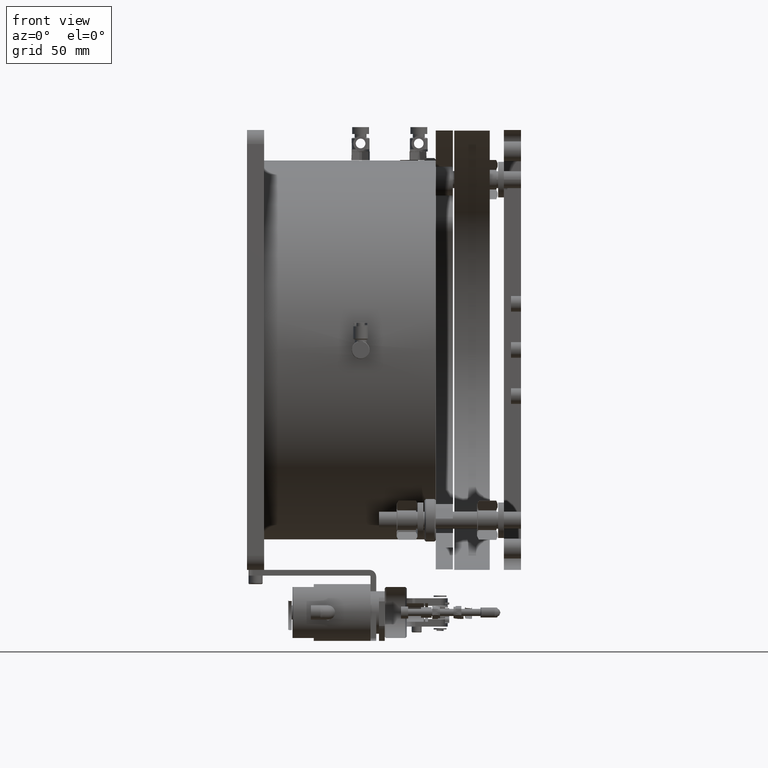
[diagram: clean part render]
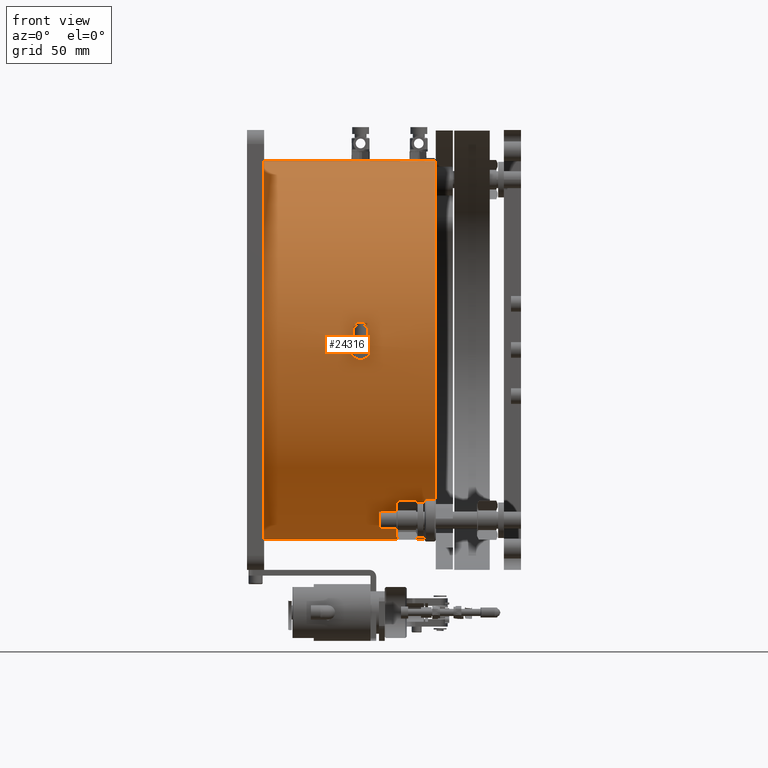
[diagram: same view with one face highlighted and labeled with its STEP entity id]
A machine part, front view. The second image highlights one B-rep face of the part: STEP entity #24316.
In plain terms, the highlighted cylindrical surface (bore or boss wall) has radius 133.5 mm, axis along (1, -0, -0).
Its self-contained STEP definition (entity closure, byte-faithful):
#208 = CARTESIAN_POINT ( 'NONE',  ( 464.4121963579659109, -167.7877219644888953, 608.7757094395534523 ) ) ;
#226 = CIRCLE ( 'NONE', #7754, 133.4999999999999432 ) ;
#498 = CARTESIAN_POINT ( 'NONE',  ( 463.4331972547801684, -167.7764876154168405, 609.1814316796575213 ) ) ;
#513 = CARTESIAN_POINT ( 'NONE',  ( 461.3466779185159794, -30.43573833762481584, 738.7266540197528002 ) ) ;
#550 = EDGE_CURVE ( 'NONE', #16642, #16642, #226, .T. ) ;
#616 = CARTESIAN_POINT ( 'NONE',  ( 499.3911129078833824, -34.33325410461313254, 738.7834046956846805 ) ) ;
#2237 = ORIENTED_EDGE ( 'NONE', *, *, #3704, .T. ) ;
#2556 = CARTESIAN_POINT ( 'NONE',  ( 465.8830467142116163, -167.8188429739955438, 607.3052762624895422 ) ) ;
#2617 = CARTESIAN_POINT ( 'NONE',  ( 464.8420550594223073, -167.7952947080903243, 602.0780744952822943 ) ) ;
#2715 = CARTESIAN_POINT ( 'NONE',  ( 507.3911129078834392, -34.86402820238219391, 738.7834046956846805 ) ) ;
#2757 = ORIENTED_EDGE ( 'NONE', *, *, #14846, .T. ) ;
#2764 = CARTESIAN_POINT ( 'NONE',  ( 459.1856000745275423, -167.8112865164292202, 602.8327741083015781 ) ) ;
#3027 = CARTESIAN_POINT ( 'NONE',  ( 505.4096170529750225, -30.83941807878073860, 738.7378320249197259 ) ) ;
#3156 = CARTESIAN_POINT ( 'NONE',  ( 458.8976870065486651, -32.31414042792429342, 738.7690327898141049 ) ) ;
#3405 = CARTESIAN_POINT ( 'NONE',  ( 458.3911131595660322, -167.8332540970720288, 605.2848236604243084 ) ) ;
#3433 = CARTESIAN_POINT ( 'NONE',  ( 461.8624854393904684, -38.33351276373830530, 738.7234583929429164 ) ) ;
#3467 = CARTESIAN_POINT ( 'NONE',  ( 507.3911129078833255, -33.80133686286269779, 738.7834046956844531 ) ) ;
#3581 = CARTESIAN_POINT ( 'NONE',  ( 460.3717203282150194, -37.82664882953020680, 738.7378439519917492 ) ) ;
#3704 = EDGE_CURVE ( 'NONE', #6434, #8356, #28369, .T. ) ;
#3763 = CARTESIAN_POINT ( 'NONE',  ( 394.3911129078834392, -34.33325410461312543, 605.2834046956847942 ) ) ;
#4773 = CARTESIAN_POINT ( 'NONE',  ( 464.8443547557029660, -167.7953385714103831, 608.4869307975635593 ) ) ;
#4788 = CARTESIAN_POINT ( 'NONE',  ( 504.4327231283908191, -38.23145786673237012, 738.7266330021597014 ) ) ;
#4817 = DIRECTION ( 'NONE',  ( -1.000000000000000000, 1.110223024625156294E-16, 4.190455460860056068E-35 ) ) ;
#4924 = CARTESIAN_POINT ( 'NONE',  ( 465.8809529585207088, -32.30747341135631956, 738.7689375397338836 ) ) ;
#4934 = FACE_OUTER_BOUND ( 'NONE', #11731, .T. ) ;
#4970 = CARTESIAN_POINT ( 'NONE',  ( 460.3666099245932628, -167.7877738825470715, 601.7930540368960237 ) ) ;
#5067 = CARTESIAN_POINT ( 'NONE',  ( 466.3911129078834392, -34.33325410461312543, 738.7834046956846805 ) ) ;
#5495 = CARTESIAN_POINT ( 'NONE',  ( 465.8831693351366994, -36.35483657791602496, 738.7689962779247708 ) ) ;
#5530 = CARTESIAN_POINT ( 'NONE',  ( 506.8809529585206519, -32.30747340990288308, 738.7689375397171716 ) ) ;
#5541 = VERTEX_POINT ( 'NONE', #23087 ) ;
#5683 = CARTESIAN_POINT ( 'NONE',  ( 501.3671280551116070, -30.84261721517503219, 738.7379170713453505 ) ) ;
#6068 = B_SPLINE_CURVE_WITH_KNOTS ( 'NONE', 3,
 ( #14187, #25253, #18468, #7122, #11545, #11399, #20540, #20979, #7563, #20402, #498, #208, #4773, #15975, #2556, #9186, #20832, #9773 ),
 .UNSPECIFIED., .F., .F.,
 ( 4, 2, 2, 2, 2, 2, 2, 2, 4 ),
 ( 0.000000000000000000, 0.1250000000000000000, 0.2500000000000000000, 0.3750000000000000000, 0.5000000000000000000, 0.6250000000000000000, 0.7500000000000000000, 0.8750000000000000000, 1.000000000000000000 ),
 .UNSPECIFIED. ) ;
#6434 = VERTEX_POINT ( 'NONE', #616 ) ;
#6773 = CARTESIAN_POINT ( 'NONE',  ( 466.3911129078834392, -167.8332541046130757, 605.2834046956843395 ) ) ;
#7122 = CARTESIAN_POINT ( 'NONE',  ( 458.8992088599141539, -167.8188414445039029, 607.3053742917567206 ) ) ;
#7180 = CARTESIAN_POINT ( 'NONE',  ( 462.9174301572528520, -167.7733016333672822, 601.2829402549421047 ) ) ;
#7424 = CARTESIAN_POINT ( 'NONE',  ( 459.9352125963669096, -31.13175555826339291, 738.7455384380085661 ) ) ;
#7435 = DIRECTION ( 'NONE',  ( 1.000000000000000000, -1.110223024625156294E-16, -4.190455460860056068E-35 ) ) ;
#7563 = CARTESIAN_POINT ( 'NONE',  ( 461.8634887714151773, -167.7733093049670856, 609.2836132115285181 ) ) ;
#7600 = CARTESIAN_POINT ( 'NONE',  ( 507.3911129078834392, -34.33325410461313254, 738.7834046956846805 ) ) ;
#7709 = CARTESIAN_POINT ( 'NONE',  ( 459.1879542003749179, -36.78714594190684295, 738.7613776265166052 ) ) ;
#7754 = AXIS2_PLACEMENT_3D ( 'NONE', #11885, #4817, #20883 ) ;
#7855 = CARTESIAN_POINT ( 'NONE',  ( 458.8984591734155742, -36.35377825252297157, 738.7690128476152722 ) ) ;
#8143 = CARTESIAN_POINT ( 'NONE',  ( 461.3523608902012256, -38.23227113917591424, 738.7266092063812266 ) ) ;
#8356 = VERTEX_POINT ( 'NONE', #28007 ) ;
#8867 = VERTEX_POINT ( 'NONE', #18140 ) ;
#9103 = CARTESIAN_POINT ( 'NONE',  ( 461.3455528505685379, -167.7765149226842141, 601.3862853594937405 ) ) ;
#9186 = CARTESIAN_POINT ( 'NONE',  ( 466.2894996691491656, -167.8300931927495867, 606.3247278514198797 ) ) ;
#9204 = CARTESIAN_POINT ( 'NONE',  ( 505.4116893539937223, -37.82578865600442697, 738.7378665013220598 ) ) ;
#9344 = CARTESIAN_POINT ( 'NONE',  ( 499.3911129078833824, -34.33325410461313254, 738.7834046956846805 ) ) ;
#9490 = CARTESIAN_POINT ( 'NONE',  ( 462.9183027316734069, -30.33274040306555008, 738.7234507477949137 ) ) ;
#9492 = CARTESIAN_POINT ( 'NONE',  ( 501.3717203289729127, -37.82664882977266529, 738.7378439519848143 ) ) ;
#9500 = CARTESIAN_POINT ( 'NONE',  ( 394.3911129078834392, -34.33325410461312543, 605.2834046956847942 ) ) ;
#9657 = CARTESIAN_POINT ( 'NONE',  ( 506.5924955647045635, -31.87723372755400675, 738.7613362467435536 ) ) ;
#9773 = CARTESIAN_POINT ( 'NONE',  ( 466.3911129078834392, -167.8332541046130757, 605.2834046956843395 ) ) ;
#9777 = EDGE_LOOP ( 'NONE', ( #17716 ) ) ;
#9807 = CARTESIAN_POINT ( 'NONE',  ( 499.8976870070181917, -32.31414042715293533, 738.7690327898054647 ) ) ;
#9940 = CARTESIAN_POINT ( 'NONE',  ( 463.4298110683229197, -30.43428862734192464, 738.7266103382233950 ) ) ;
#10063 = CARTESIAN_POINT ( 'NONE',  ( 462.9225812686427730, -38.33299494107117056, 738.7234739151972462 ) ) ;
#10205 = CARTESIAN_POINT ( 'NONE',  ( 458.4925821609899117, -35.37383955331746677, 738.7802484166018075 ) ) ;
#10347 = CARTESIAN_POINT ( 'NONE',  ( 466.2892406182347145, -35.37519548665999025, 738.7802372944900071 ) ) ;
#10365 = ORIENTED_EDGE ( 'NONE', *, *, #28144, .T. ) ;
#11312 = VERTEX_POINT ( 'NONE', #26655 ) ;
#11399 = CARTESIAN_POINT ( 'NONE',  ( 459.9394825390952519, -167.7953069577007170, 608.4882664246171089 ) ) ;
#11545 = CARTESIAN_POINT ( 'NONE',  ( 459.1887536981953986, -167.8112087403871442, 607.7382604373042341 ) ) ;
#11563 = CARTESIAN_POINT ( 'NONE',  ( 506.5938405556647126, -36.78749635588368250, 738.7613697403858168 ) ) ;
#11572 = DIRECTION ( 'NONE',  ( 0.000000000000000000, 1.000000000000000000, 0.000000000000000000 ) ) ;
#11608 = CARTESIAN_POINT ( 'NONE',  ( 463.4288548168410671, -167.7764490421229482, 601.3840639701229520 ) ) ;
#11706 = CARTESIAN_POINT ( 'NONE',  ( 502.8624854392194266, -38.33351276373839767, 738.7234583929429164 ) ) ;
#11715 = FACE_BOUND ( 'NONE', #23330, .T. ) ;
#11731 = EDGE_LOOP ( 'NONE', ( #25311 ) ) ;
#11885 = CARTESIAN_POINT ( 'NONE',  ( 515.3911129078834392, -34.33325410461313965, 605.2834046956847942 ) ) ;
#11998 = CARTESIAN_POINT ( 'NONE',  ( 500.9387593211840226, -37.53755815330973178, 738.7454715103276612 ) ) ;
#12122 = VERTEX_POINT ( 'NONE', #6773 ) ;
#12413 = CARTESIAN_POINT ( 'NONE',  ( 466.3911129078834392, -34.86402820121851676, 738.7834046956846805 ) ) ;
#12745 = DIRECTION ( 'NONE',  ( 1.000000000000000000, -1.110223024625156294E-16, -4.190455460860056068E-35 ) ) ;
#13771 = CARTESIAN_POINT ( 'NONE',  ( 503.9225812688134170, -38.33299494107108529, 738.7234739151972462 ) ) ;
#13778 = FACE_BOUND ( 'NONE', #23765, .T. ) ;
#14067 = AXIS2_PLACEMENT_3D ( 'NONE', #3763, #12745, #19244 ) ;
#14078 = CARTESIAN_POINT ( 'NONE',  ( 507.2890809180108249, -33.28978537034257101, 738.7802302724711581 ) ) ;
#14187 = CARTESIAN_POINT ( 'NONE',  ( 458.3911131595660322, -167.8332540970720288, 605.2848236604243084 ) ) ;
#14203 = CARTESIAN_POINT ( 'NONE',  ( 459.1861768635372414, -31.88188331299463840, 738.7614235498704147 ) ) ;
#14205 = CARTESIAN_POINT ( 'NONE',  ( 505.8442241757292663, -37.53688125449336610, 738.7454863165966117 ) ) ;
#14223 = CARTESIAN_POINT ( 'NONE',  ( 504.4298110700045186, -30.43428862812082869, 738.7266103382451092 ) ) ;
#14333 = CARTESIAN_POINT ( 'NONE',  ( 466.3911129078834392, -34.33325410461312543, 738.7834046956846805 ) ) ;
#14517 = CARTESIAN_POINT ( 'NONE',  ( 499.4925023578207401, -33.29331611396561641, 738.7802520618305380 ) ) ;
#14846 = EDGE_CURVE ( 'NONE', #16742, #12122, #6068, .T. ) ;
#14928 = EDGE_CURVE ( 'NONE', #8867, #5541, #15947, .T. ) ;
#15482 = CIRCLE ( 'NONE', #14067, 133.4999999999999432 ) ;
#15893 = CARTESIAN_POINT ( 'NONE',  ( 458.3911131595660322, -167.8332540970720288, 605.2848236604243084 ) ) ;
#15947 = B_SPLINE_CURVE_WITH_KNOTS ( 'NONE', 3,
 ( #14333, #12413, #10347, #5495, #25984, #23480, #21278, #28344, #10063, #3433, #8143, #3581, #27908, #7709, #7855, #10205, #16844, #16702 ),
 .UNSPECIFIED., .F., .F.,
 ( 4, 2, 2, 2, 2, 2, 2, 2, 4 ),
 ( 0.000000000000000000, 0.1250000000000000000, 0.2500000000000000000, 0.3750000000000000000, 0.5000000000000000000, 0.6250000000000000000, 0.7500000000000000000, 0.8750000000000000000, 1.000000000000000000 ),
 .UNSPECIFIED. ) ;
#15975 = CARTESIAN_POINT ( 'NONE',  ( 465.5942115033884079, -167.8112269301053061, 607.7372466028012923 ) ) ;
#15987 = EDGE_CURVE ( 'NONE', #11312, #11312, #15482, .T. ) ;
#16003 = CYLINDRICAL_SURFACE ( 'NONE', #16360, 133.4999999999999432 ) ;
#16176 = CARTESIAN_POINT ( 'NONE',  ( 459.9342870900122762, -167.7954061517899333, 602.0826707576786703 ) ) ;
#16271 = CARTESIAN_POINT ( 'NONE',  ( 458.3911129078834392, -34.33325410461312543, 738.7834046956846805 ) ) ;
#16298 = B_SPLINE_CURVE_WITH_KNOTS ( 'NONE', 3,
 ( #16271, #27343, #23055, #3156, #14203, #7424, #25268, #513, #18344, #9490, #9940, #25710, #25124, #27631, #4924, #22904, #27479, #5067 ),
 .UNSPECIFIED., .F., .F.,
 ( 4, 2, 2, 2, 2, 2, 2, 2, 4 ),
 ( 0.000000000000000000, 0.1250000000000000000, 0.2500000000000000000, 0.3750000000000000000, 0.5000000000000000000, 0.6250000000000000000, 0.7500000000000000000, 0.8750000000000000000, 1.000000000000000000 ),
 .UNSPECIFIED. ) ;
#16360 = AXIS2_PLACEMENT_3D ( 'NONE', #9500, #7435, #11572 ) ;
#16642 = VERTEX_POINT ( 'NONE', #27994 ) ;
#16702 = CARTESIAN_POINT ( 'NONE',  ( 458.3911129078834392, -34.33325410461312543, 738.7834046956846805 ) ) ;
#16742 = VERTEX_POINT ( 'NONE', #3405 ) ;
#16844 = CARTESIAN_POINT ( 'NONE',  ( 458.3911129078834392, -34.86364477063850842, 738.7834046956846805 ) ) ;
#17021 = CARTESIAN_POINT ( 'NONE',  ( 499.3911129078833824, -34.33325410461313254, 738.7834046956846805 ) ) ;
#17716 = ORIENTED_EDGE ( 'NONE', *, *, #550, .T. ) ;
#18102 = CARTESIAN_POINT ( 'NONE',  ( 458.4920944197151016, -167.8301127032551108, 604.2448141713446148 ) ) ;
#18140 = CARTESIAN_POINT ( 'NONE',  ( 466.3911129078834392, -34.33325410461312543, 738.7834046956846805 ) ) ;
#18344 = CARTESIAN_POINT ( 'NONE',  ( 461.8572344205971376, -30.33377060229990363, 738.7234816290419985 ) ) ;
#18468 = CARTESIAN_POINT ( 'NONE',  ( 458.4927877320615721, -167.8300921937758972, 606.3248501906208503 ) ) ;
#18486 = CARTESIAN_POINT ( 'NONE',  ( 499.4925821609898549, -35.37383955267530666, 738.7802484166091972 ) ) ;
#18495 = FACE_OUTER_BOUND ( 'NONE', #9777, .T. ) ;
#18535 = CARTESIAN_POINT ( 'NONE',  ( 465.5925098664941402, -167.8111860369403985, 602.8273691082331425 ) ) ;
#18787 = CARTESIAN_POINT ( 'NONE',  ( 499.3911129078833824, -34.86364476999634832, 738.7834046956849079 ) ) ;
#19239 = CARTESIAN_POINT ( 'NONE',  ( 502.8572344207989886, -30.33377060229962652, 738.7234816290422259 ) ) ;
#19244 = DIRECTION ( 'NONE',  ( 0.000000000000000000, 1.000000000000000000, 0.000000000000000000 ) ) ;
#20402 = CARTESIAN_POINT ( 'NONE',  ( 462.9229960153606953, -167.7733218398925885, 609.2831950461628594 ) ) ;
#20418 = CARTESIAN_POINT ( 'NONE',  ( 507.2892406190079555, -35.37519548595727059, 738.7802372944980789 ) ) ;
#20540 = CARTESIAN_POINT ( 'NONE',  ( 460.3730797161334181, -167.7876763389971870, 608.7774326234869022 ) ) ;
#20558 = CARTESIAN_POINT ( 'NONE',  ( 499.8984591734158585, -36.35377825316491140, 738.7690128476078826 ) ) ;
#20718 = FACE_BOUND ( 'NONE', #24278, .T. ) ;
#20759 = CARTESIAN_POINT ( 'NONE',  ( 458.8971476786458652, -167.8188971952125712, 603.2652335750526618 ) ) ;
#20832 = CARTESIAN_POINT ( 'NONE',  ( 466.3911129078834961, -167.8332541046130757, 605.8141855295103824 ) ) ;
#20883 = DIRECTION ( 'NONE',  ( 0.000000000000000000, 1.000000000000000000, 0.000000000000000000 ) ) ;
#20979 = CARTESIAN_POINT ( 'NONE',  ( 461.3526467673049751, -167.7764567906627917, 609.1824689377032200 ) ) ;
#21000 = CARTESIAN_POINT ( 'NONE',  ( 500.1879542002848211, -36.78714594233176882, 738.7613776265076240 ) ) ;
#21148 = EDGE_CURVE ( 'NONE', #5541, #8867, #16298, .T. ) ;
#21278 = CARTESIAN_POINT ( 'NONE',  ( 464.4116893540473257, -37.82578865600428486, 738.7378665013220598 ) ) ;
#22551 = ORIENTED_EDGE ( 'NONE', *, *, #26452, .T. ) ;
#22803 = CARTESIAN_POINT ( 'NONE',  ( 466.3911129078833824, -167.8332541046131041, 604.7514942186448934 ) ) ;
#22904 = CARTESIAN_POINT ( 'NONE',  ( 466.2890809180109954, -33.28978536888919137, 738.7802302724545598 ) ) ;
#22906 = CARTESIAN_POINT ( 'NONE',  ( 507.3911129078834392, -34.33325410461313254, 738.7834046956846805 ) ) ;
#22950 = CARTESIAN_POINT ( 'NONE',  ( 465.8816179078899040, -167.8188046706104046, 603.2592177157229116 ) ) ;
#23055 = CARTESIAN_POINT ( 'NONE',  ( 458.4925023582903236, -33.29331611319390305, 738.7802520618215567 ) ) ;
#23087 = CARTESIAN_POINT ( 'NONE',  ( 458.3911129078834392, -34.33325410461312543, 738.7834046956846805 ) ) ;
#23200 = CARTESIAN_POINT ( 'NONE',  ( 502.3523608894436734, -38.23227113893339890, 738.7266092063880478 ) ) ;
#23330 = EDGE_LOOP ( 'NONE', ( #28169, #26206 ) ) ;
#23480 = CARTESIAN_POINT ( 'NONE',  ( 464.8442241755719238, -37.53688125458067759, 738.7454863165947927 ) ) ;
#23518 = CARTESIAN_POINT ( 'NONE',  ( 499.3911129078833824, -33.80331818874607563, 738.7834046956846805 ) ) ;
#23765 = EDGE_LOOP ( 'NONE', ( #22551, #2237 ) ) ;
#23861 = B_SPLINE_CURVE_WITH_KNOTS ( 'NONE', 3,
 ( #22906, #2715, #20418, #24989, #11563, #14205, #9204, #4788, #13771, #11706, #23200, #9492, #11998, #21000, #20558, #18486, #18787, #9344 ),
 .UNSPECIFIED., .F., .F.,
 ( 4, 2, 2, 2, 2, 2, 2, 2, 4 ),
 ( 0.000000000000000000, 0.1250000000000000000, 0.2500000000000000000, 0.3750000000000000000, 0.5000000000000000000, 0.6250000000000000000, 0.7500000000000000000, 0.8750000000000000000, 1.000000000000000000 ),
 .UNSPECIFIED. ) ;
#24278 = EDGE_LOOP ( 'NONE', ( #2757, #10365 ) ) ;
#24316 = ADVANCED_FACE ( 'NONE', ( #4934, #11715, #13778, #18495, #20718 ), #16003, .T. ) ;
#24887 = CARTESIAN_POINT ( 'NONE',  ( 466.2882801300426650, -167.8300582006086756, 604.2380152980584853 ) ) ;
#24989 = CARTESIAN_POINT ( 'NONE',  ( 506.8831693343636289, -36.35483657861888673, 738.7689962779168127 ) ) ;
#25124 = CARTESIAN_POINT ( 'NONE',  ( 464.8425715443777335, -31.12841011986624551, 738.7454563143960513 ) ) ;
#25253 = CARTESIAN_POINT ( 'NONE',  ( 458.3913012656557271, -167.8332484609348967, 605.8150865276163586 ) ) ;
#25268 = CARTESIAN_POINT ( 'NONE',  ( 460.3671280554871714, -30.84261721517446020, 738.7379170713455778 ) ) ;
#25311 = ORIENTED_EDGE ( 'NONE', *, *, #15987, .T. ) ;
#25317 = CARTESIAN_POINT ( 'NONE',  ( 464.4095842532033771, -167.7876808115375411, 601.7895349856923985 ) ) ;
#25710 = CARTESIAN_POINT ( 'NONE',  ( 464.4096170546567350, -30.83941807955971015, 738.7378320249414401 ) ) ;
#25730 = CARTESIAN_POINT ( 'NONE',  ( 500.9352125971456644, -31.13175555778440895, 738.7455384379985617 ) ) ;
#25984 = CARTESIAN_POINT ( 'NONE',  ( 465.5938405558222257, -36.78749635579616495, 738.7613697403877495 ) ) ;
#26018 = CARTESIAN_POINT ( 'NONE',  ( 500.1861768627578044, -31.88188331347404514, 738.7614235498803055 ) ) ;
#26206 = ORIENTED_EDGE ( 'NONE', *, *, #21148, .T. ) ;
#26452 = EDGE_CURVE ( 'NONE', #8356, #6434, #23861, .T. ) ;
#26655 = CARTESIAN_POINT ( 'NONE',  ( 394.3911129078834392, 99.16674589538682483, 605.2834046956847942 ) ) ;
#26958 = CARTESIAN_POINT ( 'NONE',  ( 461.8566730610221498, -167.7733296011163873, 601.2838732599647074 ) ) ;
#27099 = CARTESIAN_POINT ( 'NONE',  ( 458.3909251231769986, -167.8332597311207337, 604.7547572756532190 ) ) ;
#27245 = CARTESIAN_POINT ( 'NONE',  ( 466.3911129078834392, -167.8332541046130757, 605.2834046956843395 ) ) ;
#27343 = CARTESIAN_POINT ( 'NONE',  ( 458.3911129078833824, -33.80331818910941166, 738.7834046956847942 ) ) ;
#27479 = CARTESIAN_POINT ( 'NONE',  ( 466.3911129078834961, -33.80133686140921867, 738.7834046956846805 ) ) ;
#27631 = CARTESIAN_POINT ( 'NONE',  ( 465.5924955643146745, -31.87723372806366129, 738.7613362467545812 ) ) ;
#27652 = CARTESIAN_POINT ( 'NONE',  ( 502.3466779188916576, -30.43573833762437175, 738.7266540197531413 ) ) ;
#27802 = CARTESIAN_POINT ( 'NONE',  ( 503.9183027314716696, -30.33274040306586627, 738.7234507477951411 ) ) ;
#27908 = CARTESIAN_POINT ( 'NONE',  ( 459.9387593210943805, -37.53755815373499161, 738.7454715103189073 ) ) ;
#27994 = CARTESIAN_POINT ( 'NONE',  ( 515.3911129078834392, 99.16674589538682483, 605.2834046956847942 ) ) ;
#28007 = CARTESIAN_POINT ( 'NONE',  ( 507.3911129078834392, -34.33325410461313254, 738.7834046956846805 ) ) ;
#28046 = B_SPLINE_CURVE_WITH_KNOTS ( 'NONE', 3,
 ( #27245, #22803, #24887, #22950, #18535, #2617, #25317, #11608, #7180, #26958, #9103, #4970, #16176, #2764, #20759, #18102, #27099, #15893 ),
 .UNSPECIFIED., .F., .F.,
 ( 4, 2, 2, 2, 2, 2, 2, 2, 4 ),
 ( 0.000000000000000000, 0.1250000000000000000, 0.2500000000000000000, 0.3750000000000000000, 0.5000000000000000000, 0.6250000000000000000, 0.7500000000000000000, 0.8750000000000000000, 1.000000000000000000 ),
 .UNSPECIFIED. ) ;
#28144 = EDGE_CURVE ( 'NONE', #12122, #16742, #28046, .T. ) ;
#28169 = ORIENTED_EDGE ( 'NONE', *, *, #14928, .T. ) ;
#28236 = CARTESIAN_POINT ( 'NONE',  ( 505.8425715439876171, -31.12841012037583965, 738.7454563144065105 ) ) ;
#28344 = CARTESIAN_POINT ( 'NONE',  ( 463.4327231283371020, -38.23145786673239854, 738.7266330021597014 ) ) ;
#28369 = B_SPLINE_CURVE_WITH_KNOTS ( 'NONE', 3,
 ( #17021, #23518, #14517, #9807, #26018, #25730, #5683, #27652, #19239, #27802, #14223, #3027, #28236, #9657, #5530, #14078, #3467, #7600 ),
 .UNSPECIFIED., .F., .F.,
 ( 4, 2, 2, 2, 2, 2, 2, 2, 4 ),
 ( 0.000000000000000000, 0.1249999999999998612, 0.2499999999999997224, 0.3749999999999995559, 0.4999999999999994449, 0.6249999999999993339, 0.7499999999999991118, 0.8749999999999995559, 1.000000000000000000 ),
 .UNSPECIFIED. ) ;